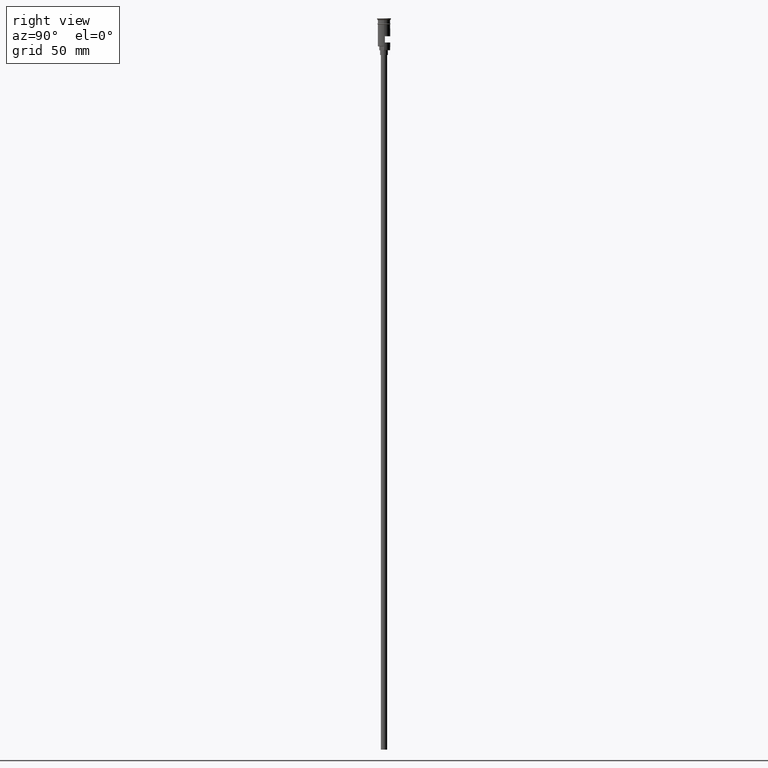
[diagram: clean part render]
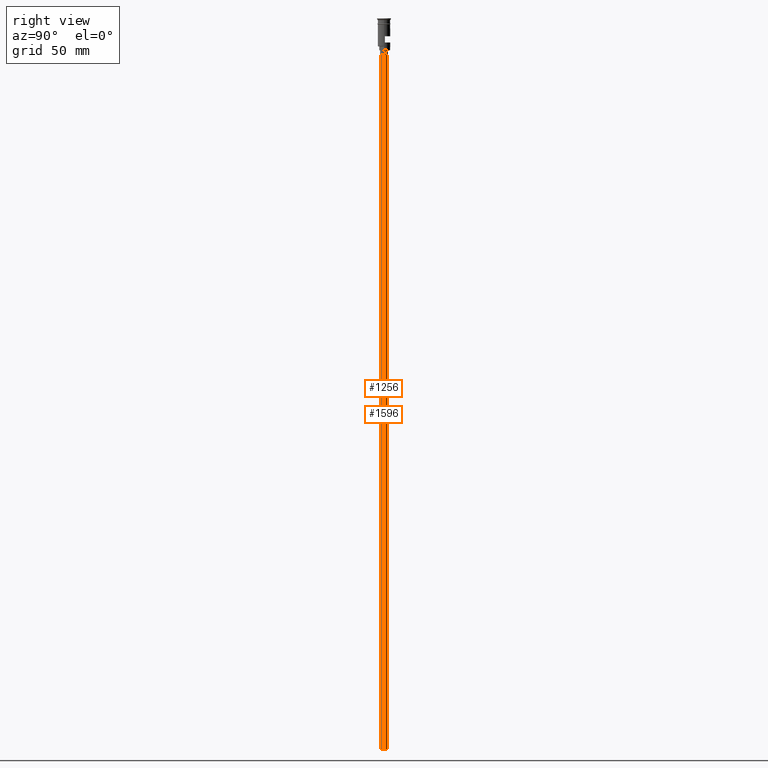
[diagram: same view with one multi-face feature highlighted, each face labeled with its STEP entity id]
A machine part, right view. The highlighted faces form ONE feature: a constant-radius fillet chain: 2 tangent blend faces with common blend radius 2 mm. The faces share edges in the B-rep.
Their STEP definitions:
[1] entity #1596 (Cylinder):
#19 = EDGE_CURVE ( 'NONE', #1152, #886, #285, .T. ) ;
#100 = DIRECTION ( 'NONE',  ( 0.000000000000000000, 0.000000000000000000, -1.000000000000000000 ) ) ;
#138 = CYLINDRICAL_SURFACE ( 'NONE', #1343, 2.000000000000000000 ) ;
#158 = CIRCLE ( 'NONE', #435, 2.000000000000000000 ) ;
#228 = EDGE_CURVE ( 'NONE', #256, #1061, #1090, .T. ) ;
#237 = CARTESIAN_POINT ( 'NONE',  ( 0.000000000000000000, 0.000000000000000000, -470.5000000000000568 ) ) ;
#245 = DIRECTION ( 'NONE',  ( 1.000000000000000000, 0.000000000000000000, 0.000000000000000000 ) ) ;
#256 = VERTEX_POINT ( 'NONE', #936 ) ;
#265 = CARTESIAN_POINT ( 'NONE',  ( 2.000000000000000000, 0.000000000000000000, -23.49999999999999645 ) ) ;
#285 = LINE ( 'NONE', #782, #1105 ) ;
#354 = FACE_OUTER_BOUND ( 'NONE', #645, .T. ) ;
#386 = CARTESIAN_POINT ( 'NONE',  ( 0.000000000000000000, 0.000000000000000000, -470.5000000000000568 ) ) ;
#435 = AXIS2_PLACEMENT_3D ( 'NONE', #1211, #1060, #1587 ) ;
#461 = CARTESIAN_POINT ( 'NONE',  ( -2.000000000000000000, 2.449293598294706414E-16, -23.49999999999999645 ) ) ;
#468 = DIRECTION ( 'NONE',  ( -1.000000000000000000, 0.000000000000000000, 0.000000000000000000 ) ) ;
#470 = DIRECTION ( 'NONE',  ( -0.000000000000000000, -0.000000000000000000, 1.000000000000000000 ) ) ;
#494 = ORIENTED_EDGE ( 'NONE', *, *, #19, .F. ) ;
#536 = DIRECTION ( 'NONE',  ( -0.000000000000000000, -0.000000000000000000, 1.000000000000000000 ) ) ;
#645 = EDGE_LOOP ( 'NONE', ( #494, #875, #1206, #860 ) ) ;
#661 = EDGE_CURVE ( 'NONE', #256, #1152, #1602, .T. ) ;
#716 = DIRECTION ( 'NONE',  ( -0.000000000000000000, -0.000000000000000000, 1.000000000000000000 ) ) ;
#782 = CARTESIAN_POINT ( 'NONE',  ( -2.000000000000000000, 2.449293598294706414E-16, -470.5000000000000568 ) ) ;
#860 = ORIENTED_EDGE ( 'NONE', *, *, #1419, .T. ) ;
#875 = ORIENTED_EDGE ( 'NONE', *, *, #661, .F. ) ;
#886 = VERTEX_POINT ( 'NONE', #461 ) ;
#936 = CARTESIAN_POINT ( 'NONE',  ( 2.000000000000000000, 0.000000000000000000, -470.5000000000000568 ) ) ;
#971 = CARTESIAN_POINT ( 'NONE',  ( 2.000000000000000000, 0.000000000000000000, -470.5000000000000568 ) ) ;
#1060 = DIRECTION ( 'NONE',  ( 0.000000000000000000, 0.000000000000000000, -1.000000000000000000 ) ) ;
#1061 = VERTEX_POINT ( 'NONE', #265 ) ;
#1090 = LINE ( 'NONE', #971, #1339 ) ;
#1105 = VECTOR ( 'NONE', #536, 1000.000000000000000 ) ;
#1152 = VERTEX_POINT ( 'NONE', #1490 ) ;
#1206 = ORIENTED_EDGE ( 'NONE', *, *, #228, .T. ) ;
#1211 = CARTESIAN_POINT ( 'NONE',  ( 0.000000000000000000, 0.000000000000000000, -23.49999999999999645 ) ) ;
#1339 = VECTOR ( 'NONE', #470, 1000.000000000000000 ) ;
#1343 = AXIS2_PLACEMENT_3D ( 'NONE', #386, #716, #245 ) ;
#1419 = EDGE_CURVE ( 'NONE', #1061, #886, #158, .T. ) ;
#1450 = AXIS2_PLACEMENT_3D ( 'NONE', #237, #100, #468 ) ;
#1490 = CARTESIAN_POINT ( 'NONE',  ( -2.000000000000000000, 2.449293598294706414E-16, -470.5000000000000568 ) ) ;
#1587 = DIRECTION ( 'NONE',  ( -1.000000000000000000, 0.000000000000000000, 0.000000000000000000 ) ) ;
#1596 = ADVANCED_FACE ( 'NONE', ( #354 ), #138, .T. ) ;
#1602 = CIRCLE ( 'NONE', #1450, 2.000000000000000000 ) ;
[2] entity #1256 (Cylinder):
#19 = EDGE_CURVE ( 'NONE', #1152, #886, #285, .T. ) ;
#180 = EDGE_CURVE ( 'NONE', #1152, #256, #1364, .T. ) ;
#211 = CARTESIAN_POINT ( 'NONE',  ( 0.000000000000000000, 0.000000000000000000, -23.49999999999999645 ) ) ;
#228 = EDGE_CURVE ( 'NONE', #256, #1061, #1090, .T. ) ;
#256 = VERTEX_POINT ( 'NONE', #936 ) ;
#265 = CARTESIAN_POINT ( 'NONE',  ( 2.000000000000000000, 0.000000000000000000, -23.49999999999999645 ) ) ;
#285 = LINE ( 'NONE', #782, #1105 ) ;
#294 = CARTESIAN_POINT ( 'NONE',  ( 0.000000000000000000, 0.000000000000000000, -470.5000000000000568 ) ) ;
#306 = ORIENTED_EDGE ( 'NONE', *, *, #180, .F. ) ;
#346 = DIRECTION ( 'NONE',  ( 0.000000000000000000, 0.000000000000000000, -1.000000000000000000 ) ) ;
#355 = CARTESIAN_POINT ( 'NONE',  ( 0.000000000000000000, 0.000000000000000000, -470.5000000000000568 ) ) ;
#375 = ORIENTED_EDGE ( 'NONE', *, *, #228, .F. ) ;
#434 = DIRECTION ( 'NONE',  ( 0.000000000000000000, 0.000000000000000000, -1.000000000000000000 ) ) ;
#461 = CARTESIAN_POINT ( 'NONE',  ( -2.000000000000000000, 2.449293598294706414E-16, -23.49999999999999645 ) ) ;
#470 = DIRECTION ( 'NONE',  ( -0.000000000000000000, -0.000000000000000000, 1.000000000000000000 ) ) ;
#474 = EDGE_CURVE ( 'NONE', #886, #1061, #1003, .T. ) ;
#536 = DIRECTION ( 'NONE',  ( -0.000000000000000000, -0.000000000000000000, 1.000000000000000000 ) ) ;
#567 = ORIENTED_EDGE ( 'NONE', *, *, #474, .T. ) ;
#736 = AXIS2_PLACEMENT_3D ( 'NONE', #355, #346, #1513 ) ;
#769 = DIRECTION ( 'NONE',  ( 1.000000000000000000, 0.000000000000000000, 0.000000000000000000 ) ) ;
#782 = CARTESIAN_POINT ( 'NONE',  ( -2.000000000000000000, 2.449293598294706414E-16, -470.5000000000000568 ) ) ;
#783 = CYLINDRICAL_SURFACE ( 'NONE', #1583, 2.000000000000000000 ) ;
#813 = DIRECTION ( 'NONE',  ( -1.000000000000000000, 0.000000000000000000, 0.000000000000000000 ) ) ;
#886 = VERTEX_POINT ( 'NONE', #461 ) ;
#921 = DIRECTION ( 'NONE',  ( -0.000000000000000000, -0.000000000000000000, 1.000000000000000000 ) ) ;
#923 = AXIS2_PLACEMENT_3D ( 'NONE', #211, #434, #813 ) ;
#936 = CARTESIAN_POINT ( 'NONE',  ( 2.000000000000000000, 0.000000000000000000, -470.5000000000000568 ) ) ;
#971 = CARTESIAN_POINT ( 'NONE',  ( 2.000000000000000000, 0.000000000000000000, -470.5000000000000568 ) ) ;
#999 = ORIENTED_EDGE ( 'NONE', *, *, #19, .T. ) ;
#1003 = CIRCLE ( 'NONE', #923, 2.000000000000000000 ) ;
#1061 = VERTEX_POINT ( 'NONE', #265 ) ;
#1090 = LINE ( 'NONE', #971, #1339 ) ;
#1105 = VECTOR ( 'NONE', #536, 1000.000000000000000 ) ;
#1152 = VERTEX_POINT ( 'NONE', #1490 ) ;
#1256 = ADVANCED_FACE ( 'NONE', ( #1539 ), #783, .T. ) ;
#1261 = EDGE_LOOP ( 'NONE', ( #306, #999, #567, #375 ) ) ;
#1339 = VECTOR ( 'NONE', #470, 1000.000000000000000 ) ;
#1364 = CIRCLE ( 'NONE', #736, 2.000000000000000000 ) ;
#1490 = CARTESIAN_POINT ( 'NONE',  ( -2.000000000000000000, 2.449293598294706414E-16, -470.5000000000000568 ) ) ;
#1513 = DIRECTION ( 'NONE',  ( -1.000000000000000000, 0.000000000000000000, 0.000000000000000000 ) ) ;
#1539 = FACE_OUTER_BOUND ( 'NONE', #1261, .T. ) ;
#1583 = AXIS2_PLACEMENT_3D ( 'NONE', #294, #921, #769 ) ;